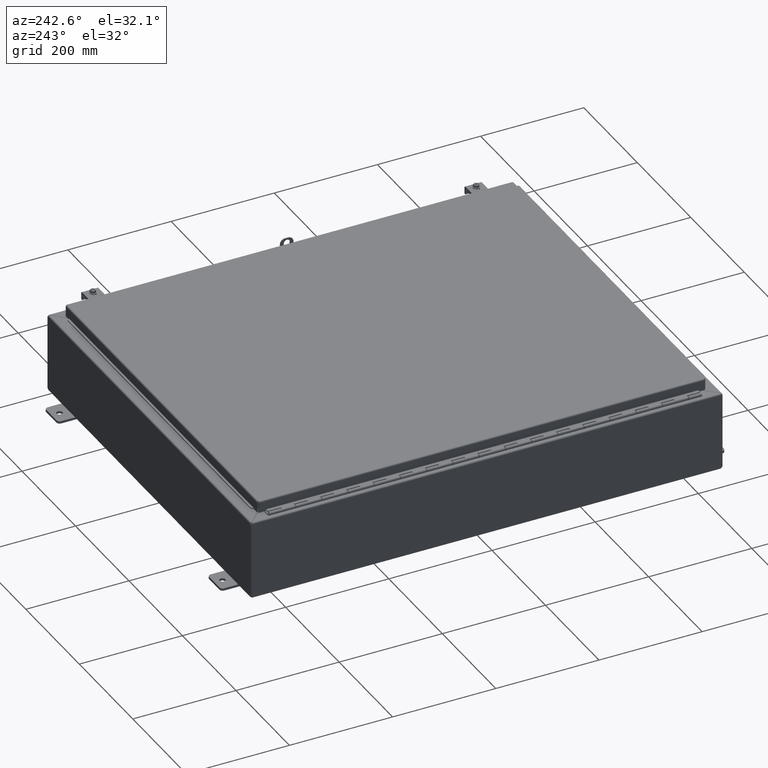
[diagram: clean part render]
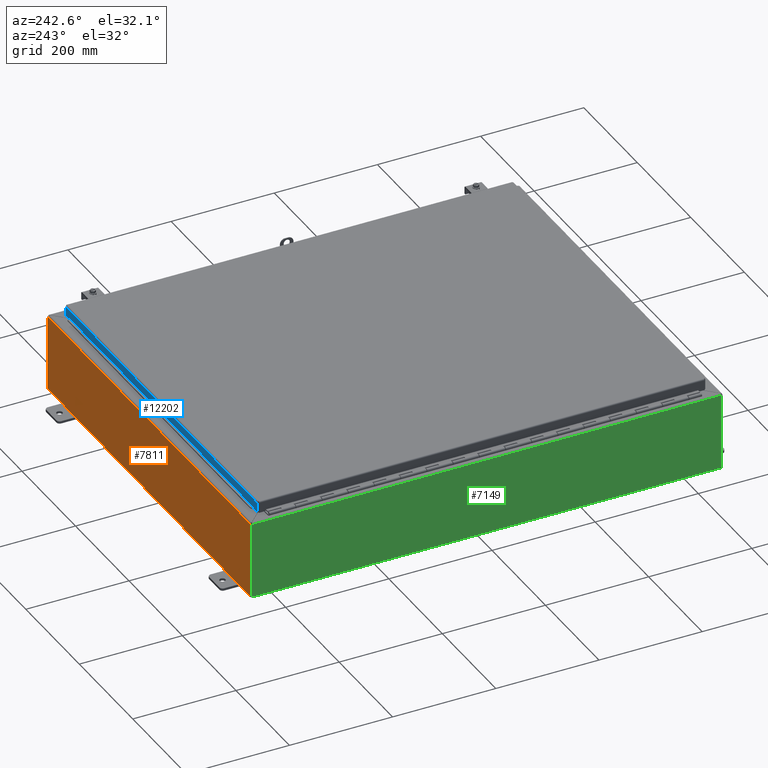
[diagram: same view with three faces highlighted in distinct colors, each labeled with its STEP entity id]
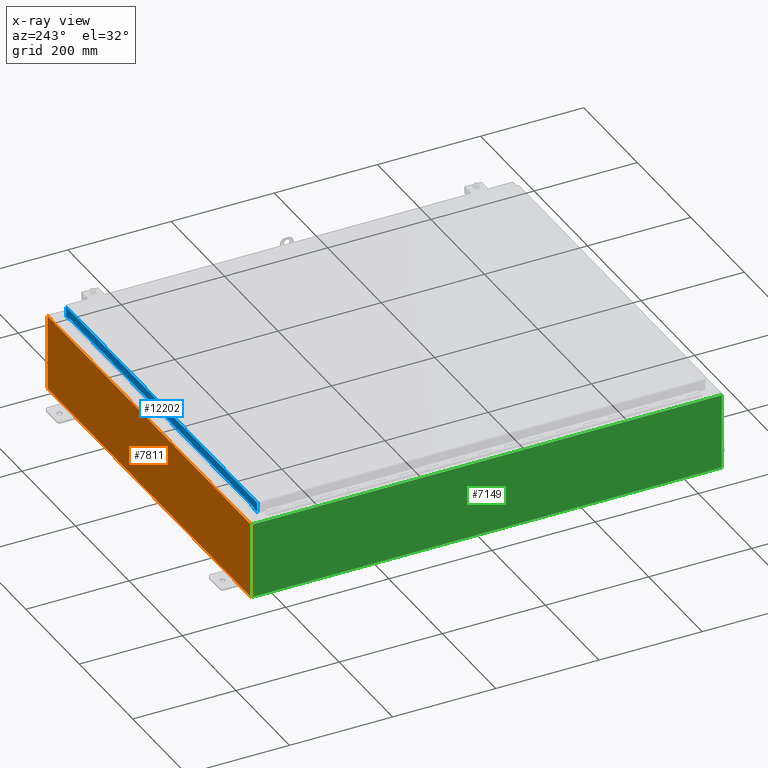
[diagram: x-ray of the same camera — body ghosted, the three highlighted faces saturated]
A machine part, auxiliary view with three faces highlighted in distinct colors.
The next image is the same camera in x-ray (body ghosted, the three faces saturated) — at least one of them is partly hidden behind the body in this view.
Their STEP definitions:

[orange] entity #7811 — the highlighted planar face has unit normal (0, -1, 0).
#6211=CARTESIAN_POINT('',(-14.914951456544001,18.000000000000028,5.894749999999998));
#6212=VERTEX_POINT('',#6211);
#6241=CARTESIAN_POINT('',(14.914951456543987,18.000000000000028,5.894749999999998));
#6242=VERTEX_POINT('',#6241);
#6256=CARTESIAN_POINT('',(-14.914951456544003,18.000000000000028,5.894749999999998));
#6257=DIRECTION('',(1.0,0.0,0.0));
#6258=VECTOR('',#6257,29.829902913087992);
#6259=LINE('',#6256,#6258);
#6260=EDGE_CURVE('',#6212,#6242,#6259,.T.);
#6428=CARTESIAN_POINT('',(14.963000000000001,18.000000000000021,5.894749999999998));
#6429=VERTEX_POINT('',#6428);
#6436=CARTESIAN_POINT('',(14.914951456543989,18.000000000000028,5.894749999999998));
#6437=DIRECTION('',(1.0,0.0,0.0));
#6438=VECTOR('',#6437,0.048048543456009);
#6439=LINE('',#6436,#6438);
#6440=EDGE_CURVE('',#6242,#6429,#6439,.T.);
#6451=CARTESIAN_POINT('',(-14.963000000000001,18.000000000000021,5.894749999999998));
#6452=VERTEX_POINT('',#6451);
#6453=CARTESIAN_POINT('',(-14.963000000000001,18.000000000000028,5.894749999999998));
#6454=DIRECTION('',(1.0,0.0,0.0));
#6455=VECTOR('',#6454,0.048048543455998);
#6456=LINE('',#6453,#6455);
#6457=EDGE_CURVE('',#6452,#6212,#6456,.T.);
#6482=CARTESIAN_POINT('',(-14.962999999999997,18.0,0.127450135591769));
#6483=VERTEX_POINT('',#6482);
#6484=CARTESIAN_POINT('',(-14.962999999999997,18.000000000000028,5.894749999999998));
#6485=DIRECTION('',(0.0,0.0,-1.0));
#6486=VECTOR('',#6485,5.76729986440823);
#6487=LINE('',#6484,#6486);
#6488=EDGE_CURVE('',#6452,#6483,#6487,.T.);
#7695=CARTESIAN_POINT('',(14.882766839324363,17.999999999999996,0.105249999999998));
#7696=VERTEX_POINT('',#7695);
#7703=CARTESIAN_POINT('',(14.963000000000003,18.0,0.127450135591763));
#7704=VERTEX_POINT('',#7703);
#7705=CARTESIAN_POINT('',(14.937891921115417,17.999999999999996,0.062108078884576));
#7706=DIRECTION('',(0.0,-1.0,0.0));
#7707=DIRECTION('',(1.0,0.0,0.0));
#7708=AXIS2_PLACEMENT_3D('',#7705,#7706,#7707);
#7709=CIRCLE('',#7708,0.07);
#7710=EDGE_CURVE('',#7704,#7696,#7709,.T.);
#7778=CARTESIAN_POINT('',(1.223868E-015,18.000000000000014,3.009483078884585));
#7779=DIRECTION('',(0.0,-1.0,0.0));
#7780=DIRECTION('',(1.0,0.0,0.0));
#7781=AXIS2_PLACEMENT_3D('',#7778,#7779,#7780);
#7782=PLANE('',#7781);
#7783=ORIENTED_EDGE('',*,*,#6457,.T.);
#7784=ORIENTED_EDGE('',*,*,#6260,.T.);
#7785=ORIENTED_EDGE('',*,*,#6440,.T.);
#7786=CARTESIAN_POINT('',(14.963000000000001,17.999999999999996,0.127450135591763));
#7787=DIRECTION('',(0.0,0.0,1.0));
#7788=VECTOR('',#7787,5.767299864408234);
#7789=LINE('',#7786,#7788);
#7790=EDGE_CURVE('',#7704,#6429,#7789,.T.);
#7791=ORIENTED_EDGE('',*,*,#7790,.F.);
#7792=ORIENTED_EDGE('',*,*,#7710,.T.);
#7793=CARTESIAN_POINT('',(-14.88276683932437,17.999999999999996,0.105249999999998));
#7794=VERTEX_POINT('',#7793);
#7795=CARTESIAN_POINT('',(14.882766839324361,17.999999999999996,0.105249999999998));
#7796=DIRECTION('',(-1.0,0.0,0.0));
#7797=VECTOR('',#7796,29.765533678648733);
#7798=LINE('',#7795,#7797);
#7799=EDGE_CURVE('',#7696,#7794,#7798,.T.);
#7800=ORIENTED_EDGE('',*,*,#7799,.T.);
#7801=CARTESIAN_POINT('',(-14.937891921115426,17.999999999999996,0.062108078884576));
#7802=DIRECTION('',(0.0,-1.0,0.0));
#7803=DIRECTION('',(1.0,0.0,0.0));
#7804=AXIS2_PLACEMENT_3D('',#7801,#7802,#7803);
#7805=CIRCLE('',#7804,0.07);
#7806=EDGE_CURVE('',#7794,#6483,#7805,.T.);
#7807=ORIENTED_EDGE('',*,*,#7806,.T.);
#7808=ORIENTED_EDGE('',*,*,#6488,.F.);
#7809=EDGE_LOOP('',(#7783,#7784,#7785,#7791,#7792,#7800,#7807,#7808));
#7810=FACE_OUTER_BOUND('',#7809,.T.);
#7811=ADVANCED_FACE('',(#7810),#7782,.F.);

[blue] entity #12202 — the highlighted planar face has unit normal (0, -1, 0).
#11819=CARTESIAN_POINT('',(13.602451456543962,-17.093750000000043,0.769749999999993));
#11820=VERTEX_POINT('',#11819);
#11845=CARTESIAN_POINT('',(-13.602451456543982,-17.093750000000043,0.76974999999999));
#11846=VERTEX_POINT('',#11845);
#11901=CARTESIAN_POINT('',(13.60245145654396,-17.093750000000043,0.769749999999993));
#11902=DIRECTION('',(-1.0,0.0,0.0));
#11903=VECTOR('',#11902,27.204902913087942);
#11904=LINE('',#11901,#11903);
#11905=EDGE_CURVE('',#11820,#11846,#11904,.T.);
#11925=CARTESIAN_POINT('',(-13.602451456543982,-17.093750000000043,0.76954999999999));
#11926=VERTEX_POINT('',#11925);
#11933=CARTESIAN_POINT('',(-13.602451456543982,-17.093750000000043,0.76974999999999));
#11934=DIRECTION('',(0.0,0.0,-1.0));
#11935=VECTOR('',#11934,0.0002);
#11936=LINE('',#11933,#11935);
#11937=EDGE_CURVE('',#11846,#11926,#11936,.T.);
#11957=CARTESIAN_POINT('',(-13.602651456543983,-17.093750000000046,0.87499999999999));
#11958=VERTEX_POINT('',#11957);
#11965=CARTESIAN_POINT('',(-13.602651456543983,-17.093750000000043,0.76954999999999));
#11966=VERTEX_POINT('',#11965);
#11967=CARTESIAN_POINT('',(-13.602651456543983,-17.093750000000043,0.76954999999999));
#11968=DIRECTION('',(0.0,0.0,1.0));
#11969=VECTOR('',#11968,0.10545);
#11970=LINE('',#11967,#11969);
#11971=EDGE_CURVE('',#11966,#11958,#11970,.T.);
#11994=CARTESIAN_POINT('',(-13.602451456543982,-17.093750000000043,0.76954999999999));
#11995=DIRECTION('',(-1.0,0.0,0.0));
#11996=VECTOR('',#11995,0.000200000000001);
#11997=LINE('',#11994,#11996);
#11998=EDGE_CURVE('',#11926,#11966,#11997,.T.);
#12084=CARTESIAN_POINT('',(13.602651456543963,-17.093750000000043,0.769549999999993));
#12085=VERTEX_POINT('',#12084);
#12092=CARTESIAN_POINT('',(13.602651456543963,-17.093750000000046,0.874999999999993));
#12093=VERTEX_POINT('',#12092);
#12094=CARTESIAN_POINT('',(13.602651456543963,-17.09375000000005,0.874999999999993));
#12095=DIRECTION('',(0.0,0.0,-1.0));
#12096=VECTOR('',#12095,0.10545);
#12097=LINE('',#12094,#12096);
#12098=EDGE_CURVE('',#12093,#12085,#12097,.T.);
#12115=CARTESIAN_POINT('',(13.602451456543962,-17.093750000000043,0.769549999999993));
#12116=VERTEX_POINT('',#12115);
#12117=CARTESIAN_POINT('',(13.602451456543962,-17.093750000000039,0.769549999999993));
#12118=DIRECTION('',(0.0,0.0,1.0));
#12119=VECTOR('',#12118,0.0002);
#12120=LINE('',#12117,#12119);
#12121=EDGE_CURVE('',#12116,#11820,#12120,.T.);
#12140=CARTESIAN_POINT('',(13.602651456543963,-17.093750000000043,0.769549999999993));
#12141=DIRECTION('',(-1.0,0.0,0.0));
#12142=VECTOR('',#12141,0.000200000000001);
#12143=LINE('',#12140,#12142);
#12144=EDGE_CURVE('',#12085,#12116,#12143,.T.);
#12150=CARTESIAN_POINT('',(-0.046950708161296,-17.093750000000021,0.440146161915871));
#12151=DIRECTION('',(0.0,1.0,0.0));
#12152=DIRECTION('',(1.0,0.0,0.0));
#12153=AXIS2_PLACEMENT_3D('',#12150,#12151,#12152);
#12154=PLANE('',#12153);
#12155=ORIENTED_EDGE('',*,*,#11971,.T.);
#12156=CARTESIAN_POINT('',(-14.102451456543982,-17.093750000000046,0.87499999999999));
#12157=VERTEX_POINT('',#12156);
#12158=CARTESIAN_POINT('',(-14.102451456543982,-17.093750000000046,0.87499999999999));
#12159=DIRECTION('',(1.0,0.0,0.0));
#12160=VECTOR('',#12159,0.4998);
#12161=LINE('',#12158,#12160);
#12162=EDGE_CURVE('',#12157,#11958,#12161,.T.);
#12163=ORIENTED_EDGE('',*,*,#12162,.F.);
#12164=CARTESIAN_POINT('',(-14.10245145654396,-17.093749999999996,0.105249999999994));
#12165=VERTEX_POINT('',#12164);
#12166=CARTESIAN_POINT('',(-14.102451456543958,-17.093750000000004,0.105249999999994));
#12167=DIRECTION('',(0.0,0.0,1.0));
#12168=VECTOR('',#12167,0.769749999999996);
#12169=LINE('',#12166,#12168);
#12170=EDGE_CURVE('',#12165,#12157,#12169,.T.);
#12171=ORIENTED_EDGE('',*,*,#12170,.F.);
#12172=CARTESIAN_POINT('',(14.102451456543962,-17.09375,0.105249999999996));
#12173=VERTEX_POINT('',#12172);
#12174=CARTESIAN_POINT('',(-14.102451456543958,-17.09375,0.105249999999993));
#12175=DIRECTION('',(1.0,0.0,0.0));
#12176=VECTOR('',#12175,28.204902913087921);
#12177=LINE('',#12174,#12176);
#12178=EDGE_CURVE('',#12165,#12173,#12177,.T.);
#12179=ORIENTED_EDGE('',*,*,#12178,.T.);
#12180=CARTESIAN_POINT('',(14.102451456543962,-17.093750000000046,0.874999999999993));
#12181=VERTEX_POINT('',#12180);
#12182=CARTESIAN_POINT('',(14.102451456543962,-17.093750000000043,0.874999999999993));
#12183=DIRECTION('',(0.0,0.0,-1.0));
#12184=VECTOR('',#12183,0.769749999999997);
#12185=LINE('',#12182,#12184);
#12186=EDGE_CURVE('',#12181,#12173,#12185,.T.);
#12187=ORIENTED_EDGE('',*,*,#12186,.F.);
#12188=CARTESIAN_POINT('',(13.602651456543965,-17.093750000000043,0.874999999999993));
#12189=DIRECTION('',(1.0,0.0,0.0));
#12190=VECTOR('',#12189,0.499799999999997);
#12191=LINE('',#12188,#12190);
#12192=EDGE_CURVE('',#12093,#12181,#12191,.T.);
#12193=ORIENTED_EDGE('',*,*,#12192,.F.);
#12194=ORIENTED_EDGE('',*,*,#12098,.T.);
#12195=ORIENTED_EDGE('',*,*,#12144,.T.);
#12196=ORIENTED_EDGE('',*,*,#12121,.T.);
#12197=ORIENTED_EDGE('',*,*,#11905,.T.);
#12198=ORIENTED_EDGE('',*,*,#11937,.T.);
#12199=ORIENTED_EDGE('',*,*,#11998,.T.);
#12200=EDGE_LOOP('',(#12155,#12163,#12171,#12179,#12187,#12193,#12194,#12195,#12196,#12197,#12198,#12199));
#12201=FACE_OUTER_BOUND('',#12200,.T.);
#12202=ADVANCED_FACE('',(#12201),#12154,.F.);

[green] entity #7149 — the highlighted planar face has unit normal (1, 0, 0).
#5610=CARTESIAN_POINT('',(-15.00000000000003,-17.914951456544003,5.894749999999992));
#5611=VERTEX_POINT('',#5610);
#5640=CARTESIAN_POINT('',(-15.000000000000036,17.914951456543989,5.894750000000001));
#5641=VERTEX_POINT('',#5640);
#5655=CARTESIAN_POINT('',(-15.000000000000027,-17.914951456544003,5.894749999999993));
#5656=DIRECTION('',(0.0,1.0,0.0));
#5657=VECTOR('',#5656,35.829902913087992);
#5658=LINE('',#5655,#5657);
#5659=EDGE_CURVE('',#5611,#5641,#5658,.T.);
#6335=CARTESIAN_POINT('',(-15.000000000000037,17.920999999999999,5.894750000000001));
#6336=VERTEX_POINT('',#6335);
#6343=CARTESIAN_POINT('',(-15.000000000000039,17.914951456543989,5.894750000000001));
#6344=DIRECTION('',(0.0,1.0,0.0));
#6345=VECTOR('',#6344,0.006048543456007);
#6346=LINE('',#6343,#6345);
#6347=EDGE_CURVE('',#5641,#6336,#6346,.T.);
#6513=CARTESIAN_POINT('',(-15.000000000000021,-17.920999999999999,5.894749999999992));
#6514=VERTEX_POINT('',#6513);
#6515=CARTESIAN_POINT('',(-15.000000000000027,-17.920999999999999,5.894749999999993));
#6516=DIRECTION('',(0.0,1.0,0.0));
#6517=VECTOR('',#6516,0.006048543455996);
#6518=LINE('',#6515,#6517);
#6519=EDGE_CURVE('',#6514,#5611,#6518,.T.);
#6544=CARTESIAN_POINT('',(-14.999999999999996,-17.920999999999999,0.130039389787797));
#6545=VERTEX_POINT('',#6544);
#6546=CARTESIAN_POINT('',(-14.999999999999726,-17.920999999999999,5.894749999999993));
#6547=DIRECTION('',(0.0,0.0,-1.0));
#6548=VECTOR('',#6547,5.764710610212195);
#6549=LINE('',#6546,#6548);
#6550=EDGE_CURVE('',#6514,#6545,#6549,.T.);
#7037=CARTESIAN_POINT('',(-15.000000000000004,17.882766839324368,0.105249999999998));
#7038=VERTEX_POINT('',#7037);
#7045=CARTESIAN_POINT('',(-15.000000000000002,17.920999999999996,0.130039389787797));
#7046=VERTEX_POINT('',#7045);
#7047=CARTESIAN_POINT('',(-15.000000000000004,17.937891921115426,0.062108078884576));
#7048=DIRECTION('',(1.0,0.0,0.0));
#7049=DIRECTION('',(0.0,0.0,-1.0));
#7050=AXIS2_PLACEMENT_3D('',#7047,#7048,#7049);
#7051=CIRCLE('',#7050,0.07);
#7052=EDGE_CURVE('',#7046,#7038,#7051,.T.);
#7116=CARTESIAN_POINT('',(-15.000000000000016,-2.015846E-016,3.00948307888458));
#7117=DIRECTION('',(1.0,0.0,0.0));
#7118=DIRECTION('',(0.0,0.0,-1.0));
#7119=AXIS2_PLACEMENT_3D('',#7116,#7117,#7118);
#7120=PLANE('',#7119);
#7121=ORIENTED_EDGE('',*,*,#6519,.T.);
#7122=ORIENTED_EDGE('',*,*,#5659,.T.);
#7123=ORIENTED_EDGE('',*,*,#6347,.T.);
#7124=CARTESIAN_POINT('',(-15.000000000000007,17.920999999999999,0.130039389787797));
#7125=DIRECTION('',(0.0,0.0,1.0));
#7126=VECTOR('',#7125,5.764710610212203);
#7127=LINE('',#7124,#7126);
#7128=EDGE_CURVE('',#7046,#6336,#7127,.T.);
#7129=ORIENTED_EDGE('',*,*,#7128,.F.);
#7130=ORIENTED_EDGE('',*,*,#7052,.T.);
#7131=CARTESIAN_POINT('',(-14.999999999999996,-17.882766839324361,0.105249999999993));
#7132=VERTEX_POINT('',#7131);
#7133=CARTESIAN_POINT('',(-15.000000000000004,17.882766839324368,0.105249999999996));
#7134=DIRECTION('',(0.0,-1.0,0.0));
#7135=VECTOR('',#7134,35.765533678648723);
#7136=LINE('',#7133,#7135);
#7137=EDGE_CURVE('',#7038,#7132,#7136,.T.);
#7138=ORIENTED_EDGE('',*,*,#7137,.T.);
#7139=CARTESIAN_POINT('',(-14.999999999999996,-17.937891921115419,0.062108078884573));
#7140=DIRECTION('',(1.0,0.0,0.0));
#7141=DIRECTION('',(0.0,0.0,-1.0));
#7142=AXIS2_PLACEMENT_3D('',#7139,#7140,#7141);
#7143=CIRCLE('',#7142,0.07);
#7144=EDGE_CURVE('',#7132,#6545,#7143,.T.);
#7145=ORIENTED_EDGE('',*,*,#7144,.T.);
#7146=ORIENTED_EDGE('',*,*,#6550,.F.);
#7147=EDGE_LOOP('',(#7121,#7122,#7123,#7129,#7130,#7138,#7145,#7146));
#7148=FACE_OUTER_BOUND('',#7147,.T.);
#7149=ADVANCED_FACE('',(#7148),#7120,.F.);